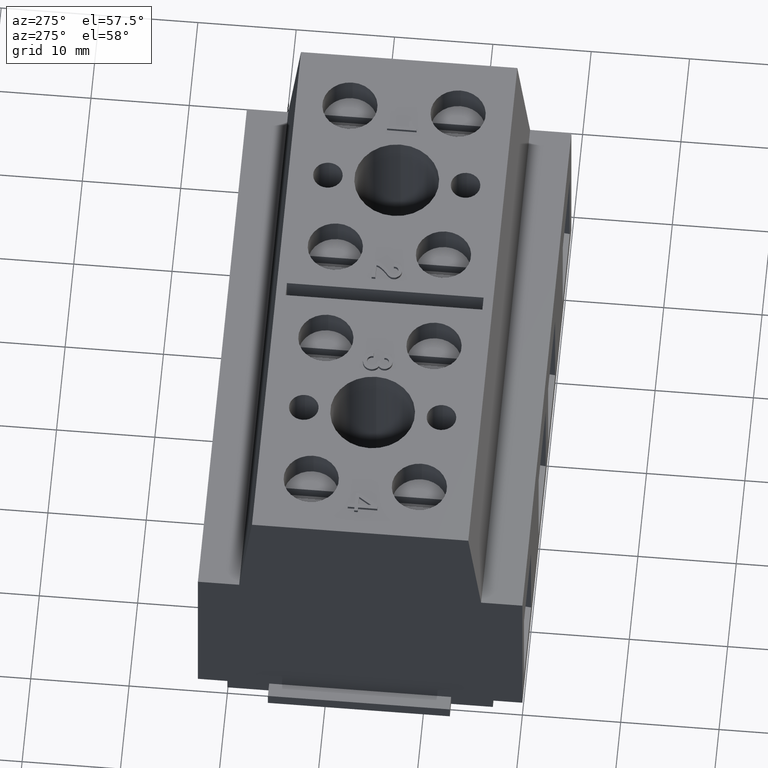
[diagram: clean part render]
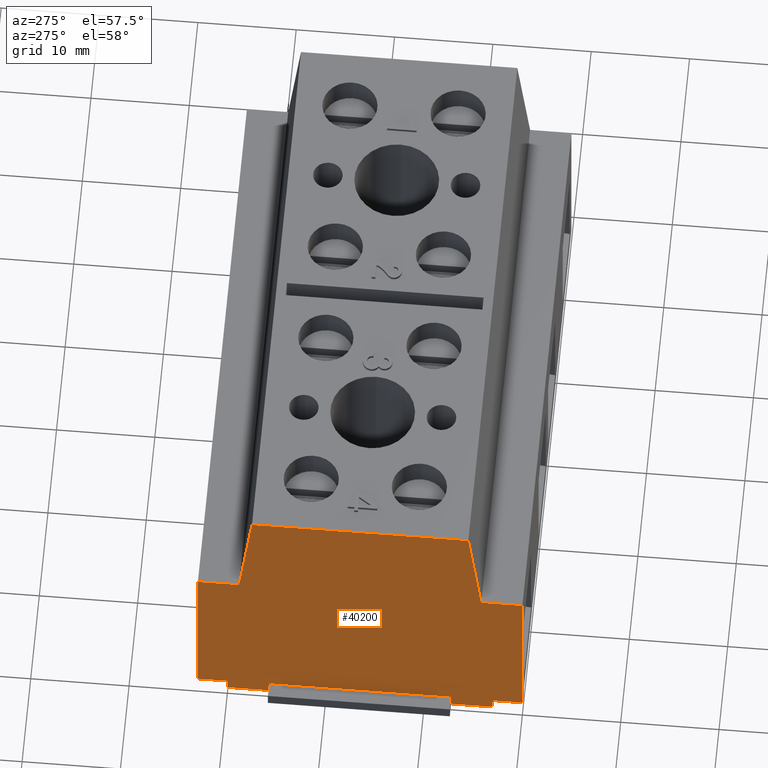
[diagram: same view with one face highlighted and labeled with its STEP entity id]
A machine part, auxiliary view. The second image highlights one B-rep face of the part: STEP entity #40200.
In plain terms, the highlighted planar face has unit normal (1, 0, 0).
Its self-contained STEP definition (entity closure, byte-faithful):
#7340=CARTESIAN_POINT('',(70.7713182031141,-4.41587903044529,58.));
#7350=DIRECTION('',(0.,-1.,0.));
#7360=VECTOR('',#7350,1.);
#7370=LINE('',#7340,#7360);
#7380=CARTESIAN_POINT('',(70.7713182031141,6.58412096955471,58.));
#7390=VERTEX_POINT('',#7380);
#7400=CARTESIAN_POINT('',(70.7713182031141,-15.4158790304453,58.));
#7410=VERTEX_POINT('',#7400);
#7420=EDGE_CURVE('',#7390,#7410,#7370,.T.);
#30200=CARTESIAN_POINT('',(39.7713182031141,9.08412096955471,58.));
#30210=VERTEX_POINT('',#30200);
#30240=CARTESIAN_POINT('',(39.7713182031141,-4.41587903044529,58.));
#30250=DIRECTION('',(0.,1.,0.));
#30260=VECTOR('',#30250,1.);
#30270=LINE('',#30240,#30260);
#30280=CARTESIAN_POINT('',(39.7713182031141,4.83412096955472,58.));
#30290=VERTEX_POINT('',#30280);
#30300=EDGE_CURVE('',#30290,#30210,#30270,.T.);
#30520=CARTESIAN_POINT('',(39.7713182031141,-13.6658790304453,58.));
#30530=VERTEX_POINT('',#30520);
#30560=CARTESIAN_POINT('',(39.7713182031141,-17.9158790304453,58.));
#30570=VERTEX_POINT('',#30560);
#30580=EDGE_CURVE('',#30570,#30530,#30270,.T.);
#32150=CARTESIAN_POINT('',(58.3213182031141,7.99151227390254,58.));
#32160=DIRECTION('',(0.993671178023366,-0.112328046211337,0.));
#32170=VECTOR('',#32160,1.);
#32180=LINE('',#32150,#32170);
#32190=CARTESIAN_POINT('',(59.2713182031141,7.88412096955472,58.));
#32200=VERTEX_POINT('',#32190);
#32210=EDGE_CURVE('',#32200,#7390,#32180,.T.);
#32530=CARTESIAN_POINT('',(59.2713182031141,-4.41587903044529,58.));
#32540=DIRECTION('',(0.,-1.,0.));
#32550=VECTOR('',#32540,1.);
#32560=LINE('',#32530,#32550);
#32570=CARTESIAN_POINT('',(59.2713182031141,12.0841209695547,58.));
#32580=VERTEX_POINT('',#32570);
#32590=EDGE_CURVE('',#32580,#32200,#32560,.T.);
#33310=CARTESIAN_POINT('',(58.3213182031141,12.0841209695547,58.));
#33320=DIRECTION('',(1.,0.,0.));
#33330=VECTOR('',#33320,1.);
#33340=LINE('',#33310,#33330);
#33350=CARTESIAN_POINT('',(40.9713182031141,12.0841209695547,58.));
#33360=VERTEX_POINT('',#33350);
#33370=EDGE_CURVE('',#33360,#32580,#33340,.T.);
#34370=CARTESIAN_POINT('',(40.9713182031141,-4.41587903044529,58.));
#34380=DIRECTION('',(0.,1.,0.));
#34390=VECTOR('',#34380,1.);
#34400=LINE('',#34370,#34390);
#34410=CARTESIAN_POINT('',(40.9713182031141,9.08412096955471,58.));
#34420=VERTEX_POINT('',#34410);
#34430=EDGE_CURVE('',#34420,#33360,#34400,.T.);
#34750=CARTESIAN_POINT('',(58.3213182031141,9.08412096955471,58.));
#34760=DIRECTION('',(1.,0.,0.));
#34770=VECTOR('',#34760,1.);
#34780=LINE('',#34750,#34770);
#34790=EDGE_CURVE('',#30210,#34420,#34780,.T.);
#35280=CARTESIAN_POINT('',(58.3213182031141,-17.9158790304453,58.));
#35290=DIRECTION('',(-1.,0.,0.));
#35300=VECTOR('',#35290,1.);
#35310=LINE('',#35280,#35300);
#35320=CARTESIAN_POINT('',(40.9713182031141,-17.9158790304453,58.));
#35330=VERTEX_POINT('',#35320);
#35340=EDGE_CURVE('',#35330,#30570,#35310,.T.);
#35660=CARTESIAN_POINT('',(40.9713182031141,-4.41587903044529,58.));
#35670=DIRECTION('',(0.,1.,0.));
#35680=VECTOR('',#35670,1.);
#35690=LINE('',#35660,#35680);
#35700=CARTESIAN_POINT('',(40.9713182031141,-20.9158790304453,58.));
#35710=VERTEX_POINT('',#35700);
#35720=EDGE_CURVE('',#35710,#35330,#35690,.T.);
#36440=CARTESIAN_POINT('',(58.3213182031141,-20.9158790304453,58.));
#36450=DIRECTION('',(-1.,0.,0.));
#36460=VECTOR('',#36450,1.);
#36470=LINE('',#36440,#36460);
#36480=CARTESIAN_POINT('',(59.2713182031141,-20.9158790304453,58.));
#36490=VERTEX_POINT('',#36480);
#36500=EDGE_CURVE('',#36490,#35710,#36470,.T.);
#37500=CARTESIAN_POINT('',(59.2713182031141,-4.41587903044529,58.));
#37510=DIRECTION('',(0.,-1.,0.));
#37520=VECTOR('',#37510,1.);
#37530=LINE('',#37500,#37520);
#37540=CARTESIAN_POINT('',(59.2713182031141,-16.7158790304453,58.));
#37550=VERTEX_POINT('',#37540);
#37560=EDGE_CURVE('',#37550,#36490,#37530,.T.);
#37880=CARTESIAN_POINT('',(58.3213182031141,-16.8232703347931,58.));
#37890=DIRECTION('',(-0.993671178023366,-0.112328046211337,0.));
#37900=VECTOR('',#37890,1.);
#37910=LINE('',#37880,#37900);
#37920=EDGE_CURVE('',#7410,#37550,#37910,.T.);
#39780=CARTESIAN_POINT('',(53.2713182031141,-20.9158790304453,58.));
#39790=DIRECTION('',(0.,0.,-1.));
#39800=DIRECTION('',(0.,1.,0.));
#39810=AXIS2_PLACEMENT_3D('',#39780,#39790,#39800);
#39820=PLANE('',#39810);
#39830=ORIENTED_EDGE('',*,*,#35720,.F.);
#39840=ORIENTED_EDGE('',*,*,#35340,.F.);
#39850=ORIENTED_EDGE('',*,*,#30580,.F.);
#39860=CARTESIAN_POINT('',(58.3213182031141,-13.6658790304453,58.));
#39870=DIRECTION('',(1.,0.,0.));
#39880=VECTOR('',#39870,1.);
#39890=LINE('',#39860,#39880);
#39900=CARTESIAN_POINT('',(41.0713182031141,-13.6658790304453,58.));
#39910=VERTEX_POINT('',#39900);
#39920=EDGE_CURVE('',#30530,#39910,#39890,.T.);
#39930=ORIENTED_EDGE('',*,*,#39920,.F.);
#39940=CARTESIAN_POINT('',(41.0713182031141,-4.41587903044529,58.));
#39950=DIRECTION('',(0.,1.,0.));
#39960=VECTOR('',#39950,1.);
#39970=LINE('',#39940,#39960);
#39980=CARTESIAN_POINT('',(41.0713182031141,4.83412096955472,58.));
#39990=VERTEX_POINT('',#39980);
#40000=EDGE_CURVE('',#39910,#39990,#39970,.T.);
#40010=ORIENTED_EDGE('',*,*,#40000,.F.);
#40020=CARTESIAN_POINT('',(58.3213182031141,4.83412096955472,58.));
#40030=DIRECTION('',(-1.,0.,0.));
#40040=VECTOR('',#40030,1.);
#40050=LINE('',#40020,#40040);
#40060=EDGE_CURVE('',#39990,#30290,#40050,.T.);
#40070=ORIENTED_EDGE('',*,*,#40060,.F.);
#40080=ORIENTED_EDGE('',*,*,#30300,.F.);
#40090=ORIENTED_EDGE('',*,*,#34790,.F.);
#40100=ORIENTED_EDGE('',*,*,#34430,.F.);
#40110=ORIENTED_EDGE('',*,*,#33370,.F.);
#40120=ORIENTED_EDGE('',*,*,#32590,.F.);
#40130=ORIENTED_EDGE('',*,*,#32210,.F.);
#40140=ORIENTED_EDGE('',*,*,#7420,.F.);
#40150=ORIENTED_EDGE('',*,*,#37920,.F.);
#40160=ORIENTED_EDGE('',*,*,#37560,.F.);
#40170=ORIENTED_EDGE('',*,*,#36500,.F.);
#40180=EDGE_LOOP('',(#40170,#40160,#40150,#40140,#40130,#40120,#40110,
#40100,#40090,#40080,#40070,#40010,#39930,#39850,#39840,#39830));
#40190=FACE_OUTER_BOUND('',#40180,.T.);
#40200=ADVANCED_FACE('',(#40190),#39820,.F.);